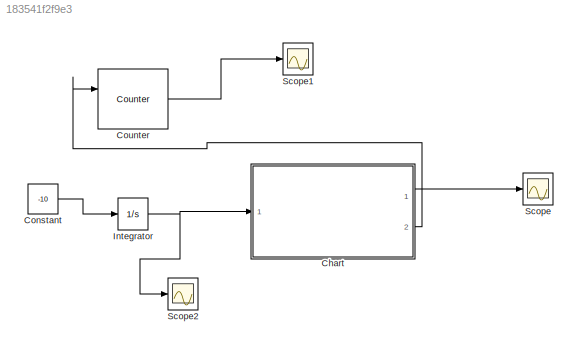
MODEL slx_183541f2f9e3
KIND model
CONFIG AbsTol = auto
CONFIG FixedStep = auto
CONFIG MaxStep = auto
CONFIG MinStep = auto
CONFIG RelTol = 1e-3
CONFIG SampleTimeConstraint = Unconstrained
CONFIG Solver = ode45
CONFIG SolverMode = Auto
CONFIG SolverName = ode45
CONFIG StartTime = 0.0
CONFIG StopTime = 20
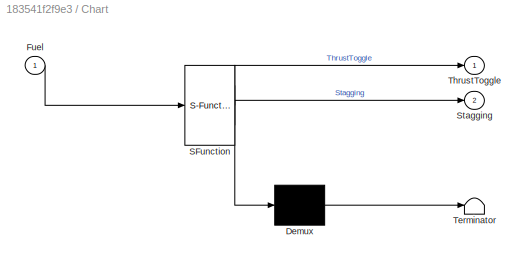
BLOCK [SubSystem] Chart
  ErrorFcn = Stateflow.Translate.translate
  PermitHierarchicalResolution = ExplicitOnly
  Ports = [1, 2]
  RequestExecContextInheritance = off
  SFBlockType = Chart
  TreatAsAtomicUnit = on
BLOCK [Demux] Chart/ Demux 
  Outputs = 1
  Ports = [1, 1]
BLOCK [S-Function] Chart/ SFunction 
  EnableBusSupport = on
  FunctionName = sf_sfun
  PortCounts = [1 3]
  Ports = [1, 3]
  Tag = Stateflow S-Function StagingTest 3
BLOCK [Terminator] Chart/ Terminator 
BLOCK [Inport] Chart/Fuel
  IconDisplay = Port number
BLOCK [Outport] Chart/Stagging
  IconDisplay = Port number
  Port = 2
BLOCK [Outport] Chart/ThrustToggle
  IconDisplay = Port number
BLOCK [Constant] Constant
  Value = -10
BLOCK [Reference] Counter  REF=dspswit3/Counter
  CntDtype = double
  CountEvent = Rising edge
  CounterSize = User defined
  Direction = Up
  HitDtype = Logical
  HitValue = 5
  InitialCount = 1
  MaxCount = 5
  Output = Count
  Ports = [2, 1]
  ResetInput = on
  SamplesPerFrame = 1
  SourceBlock = dspswit3/Counter
  SourceType = Counter
  Ts = 1
BLOCK [Integrator] Integrator
  InitialCondition = 100
  LimitOutput = on
  LowerSaturationLimit = 0
  Ports = [1, 1]
BLOCK [Scope] Scope
  Floating = off
  NumInputPorts = 1
  Ports = [1]
BLOCK [Scope] Scope1
  Floating = off
  NumInputPorts = 1
  Ports = [1]
  SaveName = ScopeData1
BLOCK [Scope] Scope2
  Floating = off
  NumInputPorts = 1
  Ports = [1]
  SaveName = ScopeData2
LINE Chart:1 -> Scope:1
LINE Chart:2 -> Counter:1
LINE Constant:1 -> Integrator:1
LINE Counter:1 -> Scope1:1
NET Integrator:1 -> Chart:1, Scope2:1
note: NET lines group one-source signal fan-out (src -> all destinations, sorted); 1:1 wires keep LINE
CHART Chart states=2 transitions=3
  STATE_LABEL 'Nominal\nentry: ThrustToggle = 1\nentry: Stagging = 0'
  STATE_LABEL 'Stage_Rocket\nentry: ThrustToggle = 0\nentry: Stagging = 1\n'
